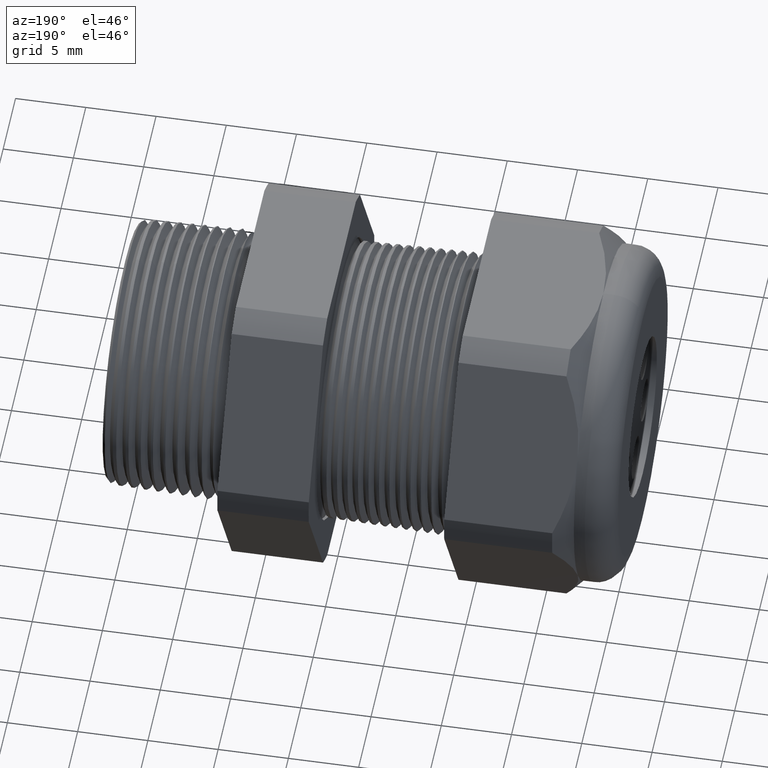
[diagram: clean part render]
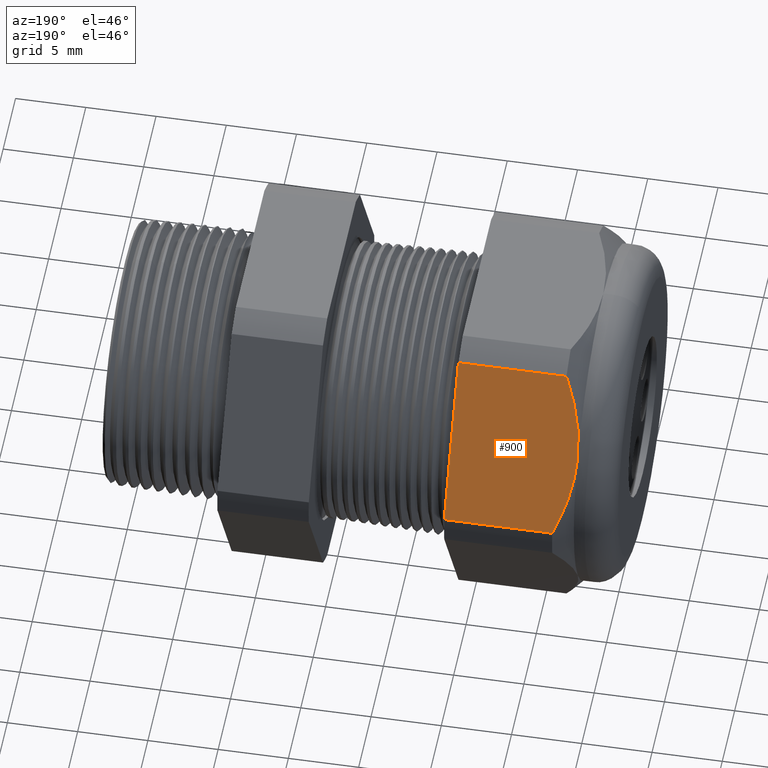
[diagram: same view with one face highlighted and labeled with its STEP entity id]
A machine part, auxiliary view. The second image highlights one B-rep face of the part: STEP entity #900.
In plain terms, the highlighted planar face has unit normal (0, 0.866, 0.5).
Its self-contained STEP definition (entity closure, byte-faithful):
#545 = VERTEX_POINT ( 'NONE', #2744 ) ;
#894 = VERTEX_POINT ( 'NONE', #3411 ) ;
#896 = EDGE_CURVE ( 'NONE', #897, #894, #3410, .T. ) ;
#897 = VERTEX_POINT ( 'NONE', #3406 ) ;
#900 = ADVANCED_FACE ( 'NONE', ( #3400 ), #3399, .T. ) ;
#902 = EDGE_LOOP ( 'NONE', ( #903, #904, #906, #962, #965 ) ) ;
#903 = ORIENTED_EDGE ( 'NONE', *, *, #896, .T. ) ;
#904 = ORIENTED_EDGE ( 'NONE', *, *, #905, .T. ) ;
#905 = EDGE_CURVE ( 'NONE', #894, #545, #3449, .T. ) ;
#906 = ORIENTED_EDGE ( 'NONE', *, *, #961, .T. ) ;
#907 = VERTEX_POINT ( 'NONE', #3450 ) ;
#961 = EDGE_CURVE ( 'NONE', #545, #907, #3561, .T. ) ;
#962 = ORIENTED_EDGE ( 'NONE', *, *, #963, .F. ) ;
#963 = EDGE_CURVE ( 'NONE', #964, #907, #3560, .T. ) ;
#964 = VERTEX_POINT ( 'NONE', #3605 ) ;
#965 = ORIENTED_EDGE ( 'NONE', *, *, #966, .F. ) ;
#966 = EDGE_CURVE ( 'NONE', #897, #964, #3604, .T. ) ;
#2744 = CARTESIAN_POINT ( 'NONE',  ( -1.299763779527559200, 0.4070319397786864600, 0.2350000000000000400 ) ) ;
#3399 = PLANE ( 'NONE',  #3459 ) ;
#3400 = FACE_OUTER_BOUND ( 'NONE', #902, .T. ) ;
#3406 = CARTESIAN_POINT ( 'NONE',  ( -0.9454330708661420300, 0.5202473208008776600, 0.03890520787129518600 ) ) ;
#3407 = DIRECTION ( 'NONE',  ( -1.000000000000000000, 0.0000000000000000000, 0.0000000000000000000 ) ) ;
#3408 = VECTOR ( 'NONE', #3407, 39.37007874015748100 ) ;
#3409 = CARTESIAN_POINT ( 'NONE',  ( 0.04000000000000011900, 0.5202473208008776600, 0.03890520787129518600 ) ) ;
#3410 = LINE ( 'NONE', #3409, #3408 ) ;
#3411 = CARTESIAN_POINT ( 'NONE',  ( -1.248063779527559300, 0.5202473208008776600, 0.03890520787129517200 ) ) ;
#3438 = CARTESIAN_POINT ( 'NONE',  ( -1.299763779527559200, 0.4070319397786864600, 0.2350000000000000400 ) ) ;
#3439 = CARTESIAN_POINT ( 'NONE',  ( -1.299763779527559200, 0.4119326305003308000, 0.2265117546779303900 ) ) ;
#3440 = CARTESIAN_POINT ( 'NONE',  ( -1.299453644849874100, 0.4168781440523186600, 0.2179458739363668600 ) ) ;
#3441 = CARTESIAN_POINT ( 'NONE',  ( -1.298221849142434900, 0.4267040029977488500, 0.2009269870148766300 ) ) ;
#3442 = CARTESIAN_POINT ( 'NONE',  ( -1.297304216752655800, 0.4315793332085026700, 0.1924826673861758700 ) ) ;
#3443 = CARTESIAN_POINT ( 'NONE',  ( -1.293700751481475300, 0.4460993342073094600, 0.1673332879302910400 ) ) ;
#3444 = CARTESIAN_POINT ( 'NONE',  ( -1.290164085422761400, 0.4556379823307485400, 0.1508118647449734600 ) ) ;
#3445 = CARTESIAN_POINT ( 'NONE',  ( -1.276620445010038200, 0.4838883643614172400, 0.1018807677346241400 ) ) ;
#3446 = CARTESIAN_POINT ( 'NONE',  ( -1.263697825203296000, 0.5022367785154772100, 0.07010038218147680900 ) ) ;
#3447 = CARTESIAN_POINT ( 'NONE',  ( -1.248063779527559300, 0.5202473208008776600, 0.03890520787129517200 ) ) ;
#3449 = B_SPLINE_CURVE_WITH_KNOTS ( 'NONE', 3,
 ( #3447, #3446, #3445, #3444, #3443, #3442, #3441, #3440, #3439, #3438 ),
 .UNSPECIFIED., .F., .F.,
 ( 4, 2, 2, 2, 4 ),
 ( 2.483251536685397000E-007, 0.002951677829872990400, 0.004427392582232648000, 0.005165249958412477200, 0.005903107334592306400 ),
 .UNSPECIFIED. ) ;
#3450 = CARTESIAN_POINT ( 'NONE',  ( -1.248063779527559300, 0.2938165587564948700, 0.4310947921287048800 ) ) ;
#3456 = DIRECTION ( 'NONE',  ( 0.0000000000000000000, -0.4999999999999998300, 0.8660254037844386000 ) ) ;
#3457 = DIRECTION ( 'NONE',  ( 0.0000000000000000000, 0.8660254037844387100, 0.4999999999999998900 ) ) ;
#3458 = CARTESIAN_POINT ( 'NONE',  ( 0.04000000000000011900, 0.2938165587564948200, 0.4310947921287048800 ) ) ;
#3459 = AXIS2_PLACEMENT_3D ( 'NONE', #3458, #3457, #3456 ) ;
#3551 = CARTESIAN_POINT ( 'NONE',  ( -1.248063779527559300, 0.2938165587564948700, 0.4310947921287048800 ) ) ;
#3552 = CARTESIAN_POINT ( 'NONE',  ( -1.263717189021966500, 0.3118494083116971600, 0.3998609804938486100 ) ) ;
#3553 = CARTESIAN_POINT ( 'NONE',  ( -1.276822062588142800, 0.3304876304616240500, 0.3675786327674194200 ) ) ;
#3554 = CARTESIAN_POINT ( 'NONE',  ( -1.294818111347314700, 0.3682441305491642200, 0.3021824562998213800 ) ) ;
#3555 = CARTESIAN_POINT ( 'NONE',  ( -1.299763779527558500, 0.3874426189162285500, 0.2689296990195457200 ) ) ;
#3556 = CARTESIAN_POINT ( 'NONE',  ( -1.299763779527559200, 0.4070319397786864600, 0.2350000000000000400 ) ) ;
#3557 = DIRECTION ( 'NONE',  ( -1.000000000000000000, 0.0000000000000000000, 0.0000000000000000000 ) ) ;
#3558 = VECTOR ( 'NONE', #3557, 39.37007874015748100 ) ;
#3559 = CARTESIAN_POINT ( 'NONE',  ( 0.04000000000000011900, 0.2938165587564948700, 0.4310947921287048800 ) ) ;
#3560 = LINE ( 'NONE', #3559, #3558 ) ;
#3561 = B_SPLINE_CURVE_WITH_KNOTS ( 'NONE', 3,
 ( #3556, #3555, #3554, #3553, #3552, #3551 ),
 .UNSPECIFIED., .F., .F.,
 ( 4, 2, 4 ),
 ( 0.005903107334592306400, 0.008852512982428768400, 0.01180191863026523000 ),
 .UNSPECIFIED. ) ;
#3601 = DIRECTION ( 'NONE',  ( 0.0000000000000000000, -0.4999999999999998300, 0.8660254037844386000 ) ) ;
#3602 = VECTOR ( 'NONE', #3601, 39.37007874015748900 ) ;
#3603 = CARTESIAN_POINT ( 'NONE',  ( -0.9454330708661420300, 0.5057819397786861300, 0.06395998275257334900 ) ) ;
#3604 = LINE ( 'NONE', #3603, #3602 ) ;
#3605 = CARTESIAN_POINT ( 'NONE',  ( -0.9454330708661420300, 0.2938165587564948700, 0.4310947921287048800 ) ) ;